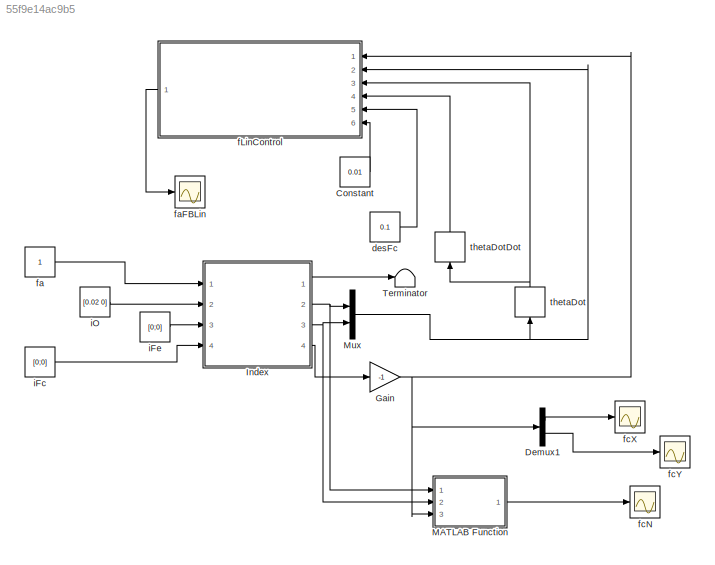
MODEL slx_55f9e14ac9b5
KIND model
CONFIG AbsTol = auto
CONFIG FixedStep = auto
CONFIG MaxStep = auto
CONFIG MinStep = auto
CONFIG RelTol = 1e-3
CONFIG SampleTimeConstraint = Unconstrained
CONFIG Solver = VariableStepAuto
CONFIG SolverMode = Auto
CONFIG SolverName = VariableStepAuto
CONFIG StartTime = 0.0
CONFIG StopTime = 1
BLOCK [Constant] Constant
  Value = 0.01
BLOCK [Demux] Demux1
  DisplayOption = bar
  Outputs = 2
  Ports = [1, 2]
BLOCK [Gain] Gain
  Gain = -1
  OutDataTypeStr = Inherit: Inherit via internal rule
  ParamDataTypeStr = Inherit: Inherit via internal rule
  SaturateOnIntegerOverflow = off
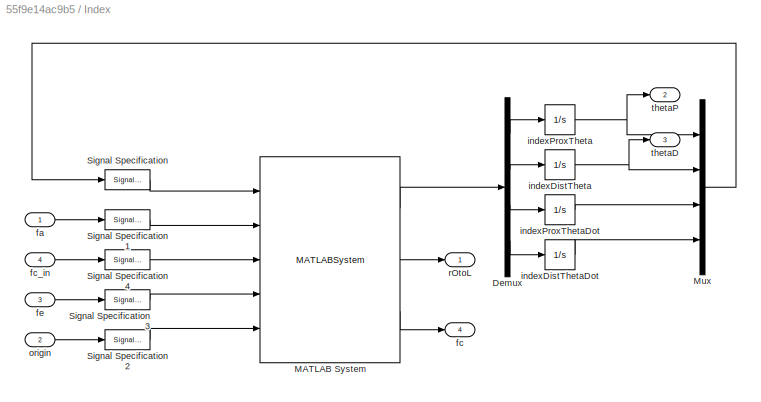
BLOCK [SubSystem] Index
  Ports = [4, 4]
  RequestExecContextInheritance = off
  Variant = off
BLOCK [Demux] Index/Demux
  DisplayOption = bar
  Ports = [1, 4]
BLOCK [MATLABSystem] Index/MATLAB System
  MaskDisplay = disp('Index');\nport_label('input',1,'initVal');\nport_label('input',2,'fa');\nport_label('input',3,'fc');\nport_label('input',4,'fe');\nport_label('input',5,'origin');\nport_label('output',1,'xDot');\nport_label('output',2,'rOtoL');\nport_label('output',3,'fc');
  MaskType = Index
  Ports = [5, 3]
  SimulateUsing = Interpreted execution
  System = Index
  dD = -0.01
  dP = -0.01
  kD = -0.185
  kP = -0.043
  lD = 0.1
  lP = 0.1
  mD = 0.02
  mP = 0.02
  rD = 0.012
  rP = 0.02
  thetaD = pi/3
  thetaP = pi/10
BLOCK [Mux] Index/Mux
  DisplayOption = bar
  Ports = [4, 1]
BLOCK [SignalSpecification] Index/Signal Specification
  Dimensions = 4
BLOCK [SignalSpecification] Index/Signal Specification1
  Dimensions = 1
BLOCK [SignalSpecification] Index/Signal Specification2
  Dimensions = 2
BLOCK [SignalSpecification] Index/Signal Specification3
  Dimensions = 2
BLOCK [SignalSpecification] Index/Signal Specification4
  Dimensions = 2
BLOCK [Inport] Index/fa
  IconDisplay = Port number
BLOCK [Outport] Index/fc
  IconDisplay = Port number
  Port = 4
BLOCK [Inport] Index/fc_in
  IconDisplay = Port number
  Port = 4
BLOCK [Inport] Index/fe
  IconDisplay = Port number
  Port = 3
BLOCK [Integrator] Index/indexDistTheta
  ContinuousStateAttributes = 'indexDistTheta'
  InitialCondition = pi/3
  Ports = [1, 1]
BLOCK [Integrator] Index/indexDistThetaDot
  ContinuousStateAttributes = 'indexDistThetaDot'
  Ports = [1, 1]
BLOCK [Integrator] Index/indexProxTheta
  ContinuousStateAttributes = 'indexProxTheta'
  InitialCondition = pi/10
  Ports = [1, 1]
BLOCK [Integrator] Index/indexProxThetaDot
  ContinuousStateAttributes = 'indexProxThetaDot'
  Ports = [1, 1]
BLOCK [Inport] Index/origin
  IconDisplay = Port number
  Port = 2
BLOCK [Outport] Index/rOtoL
  IconDisplay = Port number
BLOCK [Outport] Index/thetaD
  IconDisplay = Port number
  Port = 3
BLOCK [Outport] Index/thetaP
  IconDisplay = Port number
  Port = 2
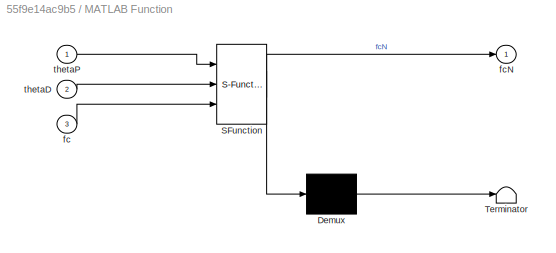
BLOCK [SubSystem] MATLAB Function
  ErrorFcn = Stateflow.Translate.translate
  PermitHierarchicalResolution = ExplicitOnly
  Ports = [3, 1]
  RequestExecContextInheritance = off
  SFBlockType = MATLAB Function
  TreatAsAtomicUnit = on
  Variant = off
BLOCK [Demux] MATLAB Function/ Demux 
  Outputs = 1
  Ports = [1, 1]
BLOCK [S-Function] MATLAB Function/ SFunction 
  EnableBusSupport = on
  FunctionName = sf_sfun
  PortCounts = [3 2]
  Ports = [3, 2]
  SFunctionDeploymentMode = off
  Tag = Stateflow S-Function oneFingerFBSim 2
BLOCK [Terminator] MATLAB Function/ Terminator 
BLOCK [Inport] MATLAB Function/fc
  IconDisplay = Port number
  Port = 3
BLOCK [Outport] MATLAB Function/fcN
  IconDisplay = Port number
BLOCK [Inport] MATLAB Function/thetaD
  IconDisplay = Port number
  Port = 2
BLOCK [Inport] MATLAB Function/thetaP
  IconDisplay = Port number
BLOCK [Mux] Mux
  DisplayOption = bar
  Inputs = 2
  Ports = [2, 1]
BLOCK [Terminator] Terminator
BLOCK [Constant] desFc
  Value = 0.1
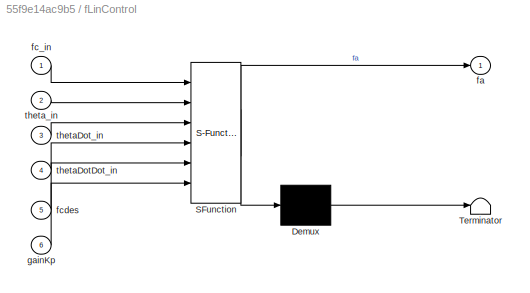
BLOCK [SubSystem] fLinControl
  ErrorFcn = Stateflow.Translate.translate
  PermitHierarchicalResolution = ExplicitOnly
  Ports = [6, 1]
  RequestExecContextInheritance = off
  SFBlockType = MATLAB Function
  TreatAsAtomicUnit = on
  Variant = off
BLOCK [Demux] fLinControl/ Demux 
  Outputs = 1
  Ports = [1, 1]
BLOCK [S-Function] fLinControl/ SFunction 
  EnableBusSupport = on
  FunctionName = sf_sfun
  PortCounts = [6 2]
  Ports = [6, 2]
  SFunctionDeploymentMode = off
  Tag = Stateflow S-Function oneFingerFBSim 4
BLOCK [Terminator] fLinControl/ Terminator 
BLOCK [Outport] fLinControl/fa
  IconDisplay = Port number
BLOCK [Inport] fLinControl/fc_in
  IconDisplay = Port number
BLOCK [Inport] fLinControl/fcdes
  IconDisplay = Port number
  Port = 5
BLOCK [Inport] fLinControl/gainKp
  IconDisplay = Port number
  Port = 6
BLOCK [Inport] fLinControl/thetaDotDot_in
  IconDisplay = Port number
  Port = 4
BLOCK [Inport] fLinControl/thetaDot_in
  IconDisplay = Port number
  Port = 3
BLOCK [Inport] fLinControl/theta_in
  IconDisplay = Port number
  Port = 2
BLOCK [Constant] fa
BLOCK [Scope] faFBLin
  Ports = [1]
  ScopeSpecificationString = Simulink.scopes.TimeScopeBlockCfg('CurrentConfiguration', extmgr.ConfigurationSet(extmgr.Configuration('Core','General UI',true),extmgr.Configuration('Core','Source UI',true),extmgr.Configuration('Sources','WiredSimulink',true),extmgr.Configuration('Visuals','Time Domain',true,'SerializedDisplays',{struct('MinYLimReal','0.86856','MaxYLimReal','1.6175','YLabelReal','','MinYLimMag','0.86856','MaxYLi...<+1380ch>
BLOCK [Scope] fcN
  Ports = [1]
  ScopeSpecificationString = Simulink.scopes.TimeScopeBlockCfg('CurrentConfiguration', extmgr.ConfigurationSet(extmgr.Configuration('Core','General UI',true),extmgr.Configuration('Core','Source UI',true),extmgr.Configuration('Sources','WiredSimulink',true,'DataLoggingVariableName','ScopeData3'),extmgr.Configuration('Visuals','Time Domain',true,'SerializedDisplays',{struct('MinYLimReal','-0.13567','MaxYLimReal','0.02105','YLab...<+1429ch>
BLOCK [Scope] fcX
  Ports = [1]
  ScopeSpecificationString = Simulink.scopes.TimeScopeBlockCfg('CurrentConfiguration', extmgr.ConfigurationSet(extmgr.Configuration('Core','General UI',true),extmgr.Configuration('Core','Source UI',true),extmgr.Configuration('Sources','WiredSimulink',true,'DataLoggingVariableName','ScopeData1'),extmgr.Configuration('Visuals','Time Domain',true,'SerializedDisplays',{struct('MinYLimReal','-0.02069','MaxYLimReal','0.13272','YLab...<+1422ch>
BLOCK [Scope] fcY
  Ports = [1]
  ScopeSpecificationString = Simulink.scopes.TimeScopeBlockCfg('CurrentConfiguration', extmgr.ConfigurationSet(extmgr.Configuration('Core','General UI',true),extmgr.Configuration('Core','Source UI',true),extmgr.Configuration('Sources','WiredSimulink',true,'DataLoggingVariableName','ScopeData2'),extmgr.Configuration('Visuals','Time Domain',true,'SerializedDisplays',{struct('MinYLimReal','-0.02807','MaxYLimReal','0.00316','YLab...<+1422ch>
BLOCK [Constant] iFc
  Value = [0;0]
BLOCK [Constant] iFe
  Value = [0;0]
BLOCK [Constant] iO
  Value = [0.02 0]
BLOCK [Derivative] thetaDot
BLOCK [Derivative] thetaDotDot
LINE Constant:1 -> fLinControl:6
LINE Demux1:1 -> fcX:1
LINE Demux1:2 -> fcY:1
NET Gain:1 -> Demux1:1, MATLAB Function:3, fLinControl:1
LINE Index/Demux:1 -> Index/indexProxTheta:1
LINE Index/Demux:2 -> Index/indexDistTheta:1
LINE Index/Demux:3 -> Index/indexProxThetaDot:1
LINE Index/Demux:4 -> Index/indexDistThetaDot:1
LINE Index/MATLAB System:1 -> Index/Demux:1
LINE Index/MATLAB System:2 -> Index/rOtoL:1
LINE Index/MATLAB System:3 -> Index/fc:1
LINE Index/Mux:1 -> Index/Signal Specification:1
LINE Index/Signal Specification1:1 -> Index/MATLAB System:2
LINE Index/Signal Specification2:1 -> Index/MATLAB System:5
LINE Index/Signal Specification3:1 -> Index/MATLAB System:4
LINE Index/Signal Specification4:1 -> Index/MATLAB System:3
LINE Index/Signal Specification:1 -> Index/MATLAB System:1
LINE Index/fa:1 -> Index/Signal Specification1:1
LINE Index/fc_in:1 -> Index/Signal Specification4:1
LINE Index/fe:1 -> Index/Signal Specification3:1
NET Index/indexDistTheta:1 -> Index/Mux:2, Index/thetaD:1
LINE Index/indexDistThetaDot:1 -> Index/Mux:4
NET Index/indexProxTheta:1 -> Index/Mux:1, Index/thetaP:1
LINE Index/indexProxThetaDot:1 -> Index/Mux:3
LINE Index/origin:1 -> Index/Signal Specification2:1
LINE Index:1 -> Terminator:1
NET Index:2 -> MATLAB Function:1, Mux:1
NET Index:3 -> MATLAB Function:2, Mux:2
LINE Index:4 -> Gain:1
LINE MATLAB Function:1 -> fcN:1
NET Mux:1 -> fLinControl:2, thetaDot:1
LINE desFc:1 -> fLinControl:5
LINE fLinControl:1 -> faFBLin:1
LINE fa:1 -> Index:1
LINE iFc:1 -> Index:4
LINE iFe:1 -> Index:3
LINE iO:1 -> Index:2
NET thetaDot:1 -> fLinControl:3, thetaDotDot:1
LINE thetaDotDot:1 -> fLinControl:4
note: NET lines group one-source signal fan-out (src -> all destinations, sorted); 1:1 wires keep LINE
CHART MATLAB Function states=1 transitions=1
  STATE_LABEL 'eML_blk_kernel()'
  STATE_LABEL 'SCRIPT:\nfunction fcN = transFc(thetaP,thetaD,fc)\n%#codegen\n\nfcTN = [[cos(thetaP+thetaD),sin(thetaP+thetaD)];[-sin(thetaP+thetaD),cos(thetaP+thetaD)]]*fc;\nfcN=fcTN(2,1);'
CHART fLinControl states=1 transitions=1
  STATE_LABEL 'eML_blk_kernel()'
  STATE_LABEL 'SCRIPT:\nfunction fa = fLinControl(fc_in,theta_in,thetaDot_in,thetaDotDot_in,fcdes,gainKp)\n    theta = [theta_in(1);theta_in(2)];\n    thetaDot = [thetaDot_in(1);thetaDot_in(2)];\n    thetaDotDot = [thetaDotDot_in(1);thetaDotDot_in(2)];\n\t% Set model variables:\n    kP = -0.043;\n    kD = -0.185;\n    dP = -0.01;\n    dD = -0.01;\n    lP = 0.1;\n    lD = 0.1;\n    rP = 0.02;\n    rD = 0.012;\n    aP = 0.1;\n   ...<+1292ch>'
